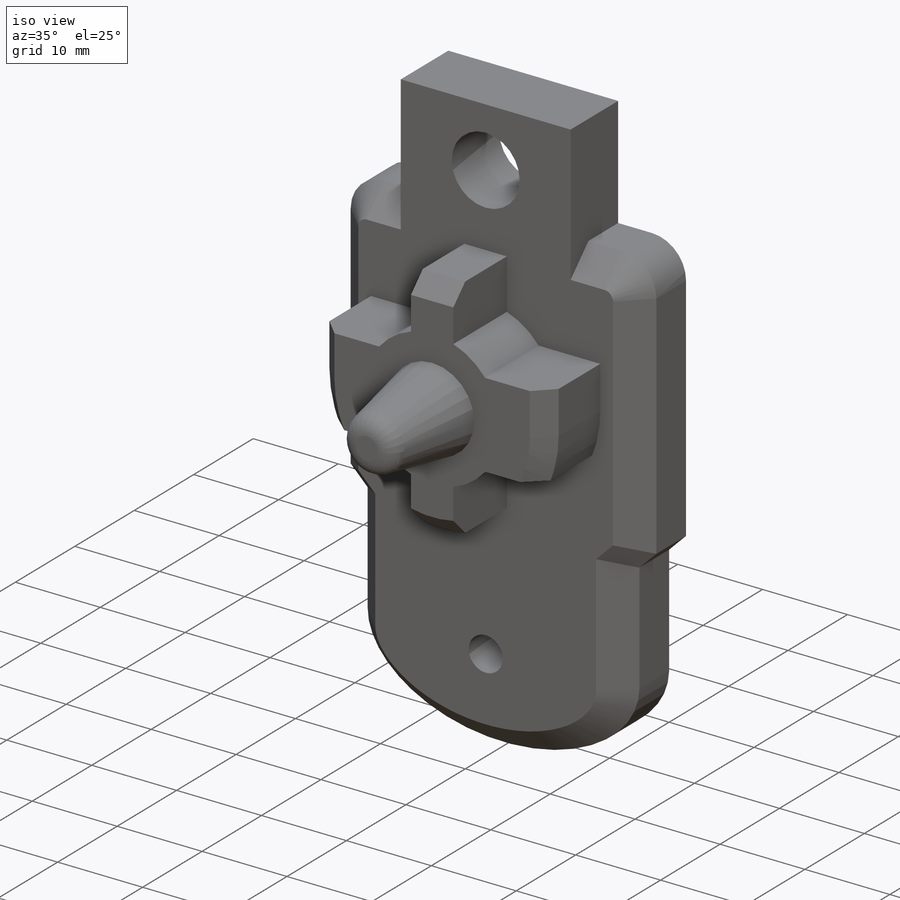
[diagram: iso view]
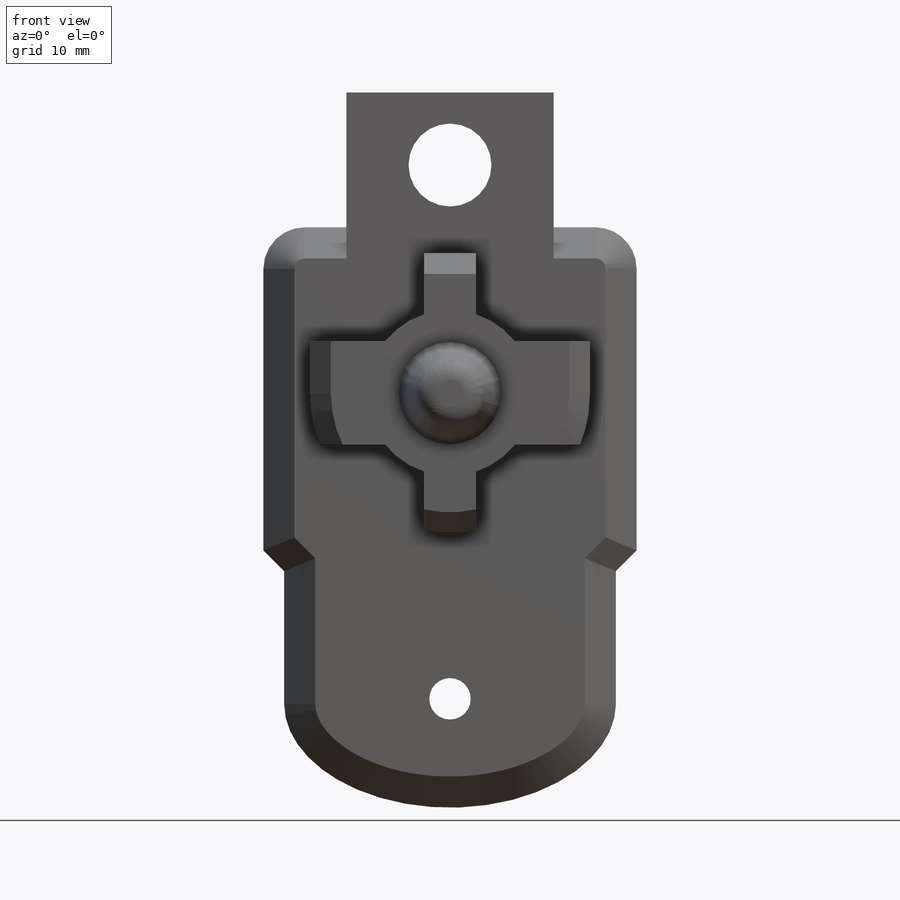
[diagram: front view]
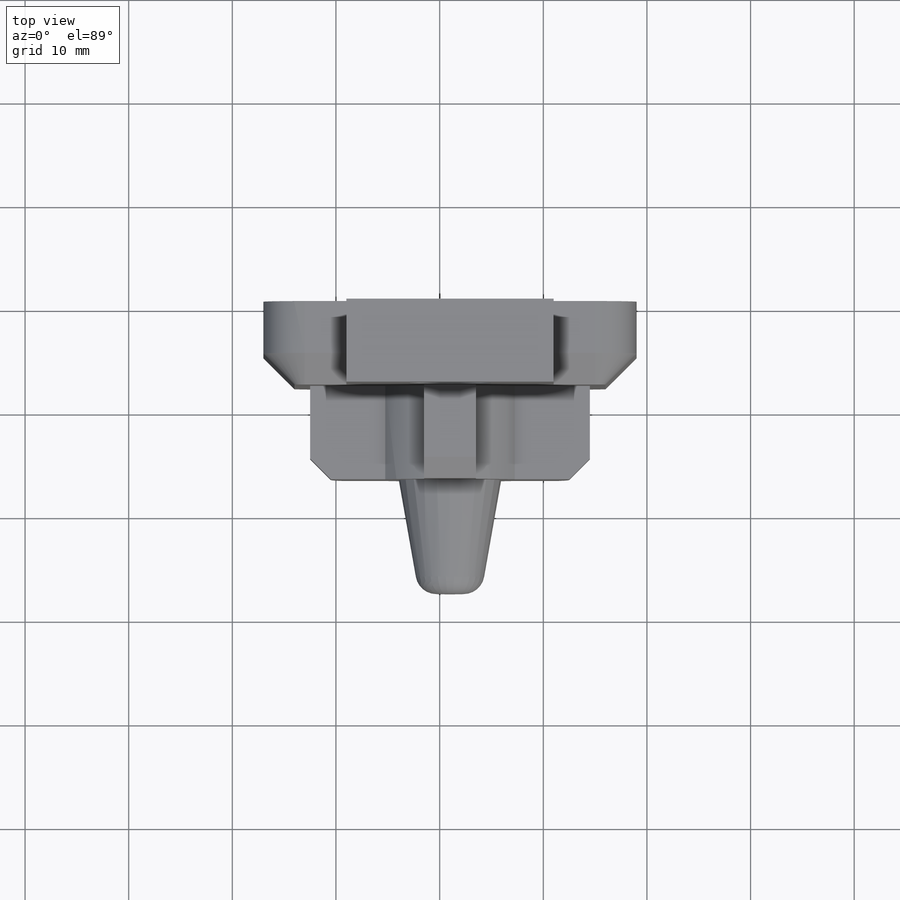
[diagram: top view]
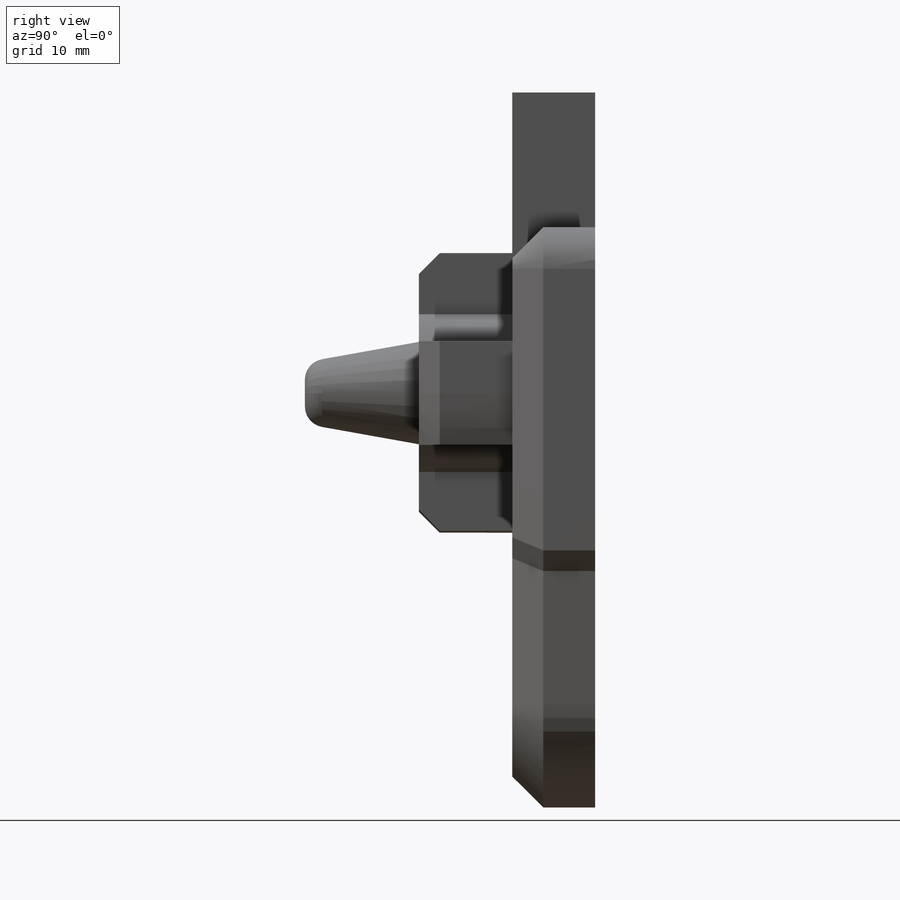
[diagram: right view]
SOLIDWORKS PART (.sldprt)
format: sldprt  version: not decoded by parser v0  size: 352,768 bytes
history: native  units: mm
features: sketch x8, chamfer x4, cut_extrude x4, extrude x3, material x1, fillet x1 (+11 scaffold rows collapsed)
feature tree (32):
  scaffold x11  (default folders/planes/origin — collapsed)
  material  "Material <not specified>"
  sketch  "Sketch1"  dims[c1.D1=~4.093776mm c1.D2=~2.523769mm c2.D1=7.0mm c2.D2=0.5mm]
  extrude  "Boss-Extrude1"  Depth=8mm
  sketch  "Sketch2"  dims[c1.D1=~15.156458mm c1.D2=14.0mm c2.D1=22.0mm]
  extrude  "Boss-Extrude2"  Depth=12mm
  chamfer  "Chamfer1"  Distance=3mm Angle=45deg
  sketch  "Sketch3"  dims[c1.D1=~2.616071mm c1.D2=2.5mm c2.D1=4.5mm]
  sketch  "Sketch4"  dims[D1=~6.786198mm]
  extrude  "Boss-Extrude3"  Depth=8mm
  chamfer  "Chamfer2"  Distance=2.5mm Angle=45deg
  sketch  "Sketch6"  dims[c1.D1=5.0mm c1.D2=5.0mm c2.D1=10.0mm]
  cut_extrude  "Cut-Extrude2"  [1 undecoded]
  sketch  "Sketch8"
  cut_extrude  "Cut-Extrude3"  [1 undecoded]
  sketch  "Sketch9"
  cut_extrude  "Cut-Extrude4"  [1 undecoded]
  sketch  "Sketch10"
  cut_extrude  "Cut-Extrude5"  Depth=3mm
  chamfer  "Chamfer3"  Distance=2mm Angle=80deg
  chamfer  "Chamfer5"  Distance=2mm Angle=45deg
  fillet  "Fillet2"  Radius=2mm
decode coverage: 14 of 20 modeling features carry decoded parameters
note: ~ marks probable driven/reference dimensions
note: 3 parameter values undecoded
summary: no parameter record found for 3 features
note: suppression state not decoded; provenance and decode notes live in map.json
